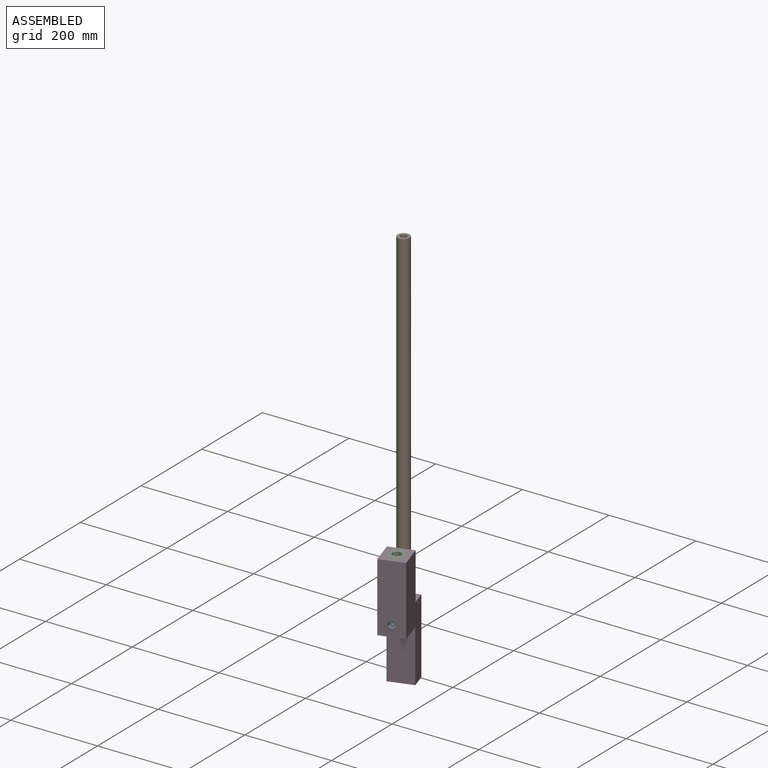
[diagram: assembled view]
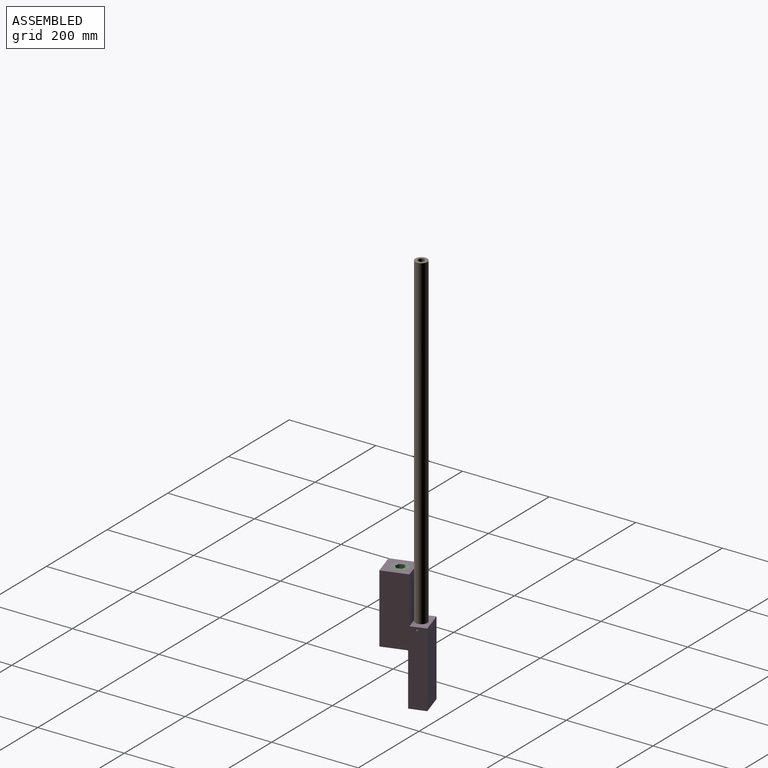
[diagram: assembled view, second angle]
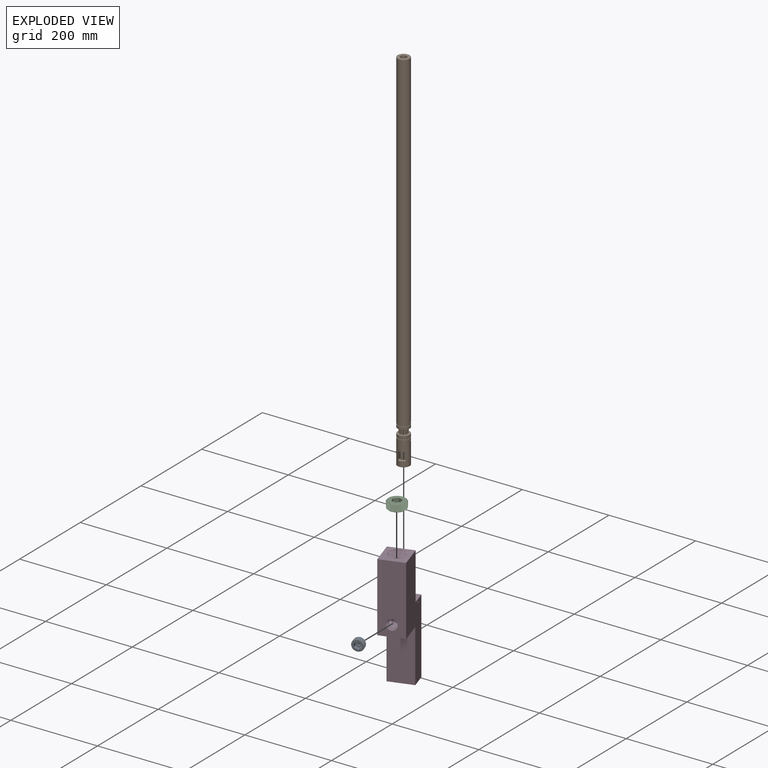
[diagram: exploded view]
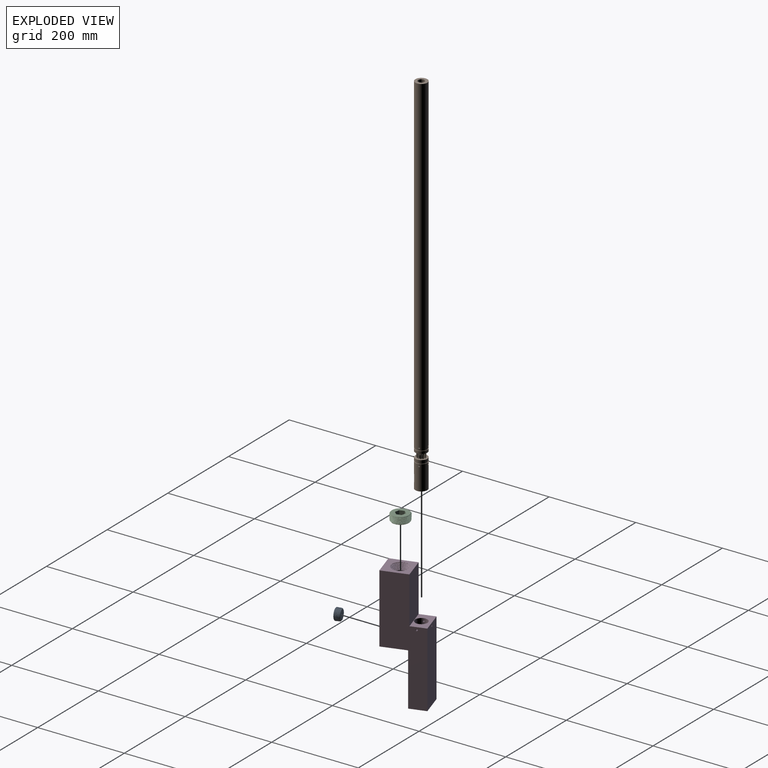
[diagram: exploded view, second angle]
ASSEMBLY  parts=4 mates=3
PART A: 16 faces, bbox 26.9x26.9x14.7 mm
  f0: cone r=1732.05mm half-angle=60deg, axis (0,0,1), area 60.7mm2, adj f4
  f1: cone r=11.89mm half-angle=45deg, axis (0,0,-1), area 86.9mm2, adj f5,f6,f7,f8
  f2: cone r=11.48mm half-angle=45deg, axis (0,0,1), area 84.8mm2, adj f3,f6,f7,f8,f9
  f3: cone r=11.48mm half-angle=45deg, axis (0,0,1), area 3.2mm2, adj f2,f6,f8
  f4: plane 16.48x14.28mm, normal (0,0,1), area 123.9mm2, adj f0,f10,f11,f12,f13,f14,f15
  f5: plane 23.77x23.77mm, normal (0,0,1), area 267.5mm2, adj f1,f10,f11,f12,f13,f14,f15
  f6: bspline ~26.84x26.68mm, area 822.6mm2, adj f1,f2,f3,f7,f8
  f7: bspline ~23.81x23.74mm, area 121.9mm2, adj f1,f2,f6,f8
  f8: bspline ~26.9x26.87mm, area 789.3mm2, adj f1,f2,f3,f6,f7
  f9: plane 22.97x22.97mm, normal (0,0,-1), area 414.3mm2, adj f2
  f10: plane 7.92x7.14mm, normal (0.5,-0.87,0), area 65.3mm2, adj f4,f5,f11,f15
  f11: plane 7.92x7.14mm, normal (-0.5,-0.87,0), area 65.3mm2, adj f4,f5,f10,f12
  f12: plane 8.24x7.92mm, normal (-1,0,0), area 65.3mm2, adj f4,f5,f11,f13
  f13: plane 7.92x7.14mm, normal (-0.5,0.87,0), area 65.3mm2, adj f4,f5,f12,f14
  f14: plane 7.92x7.14mm, normal (0.5,0.87,0), area 65.3mm2, adj f4,f5,f13,f15
  f15: plane 8.24x7.92mm, normal (1,0,0), area 65.3mm2, adj f4,f5,f10,f14
PART B: 156 faces, bbox 27.9x27.9x850 mm
  f0: cylinder r=12.7mm len=25.4mm, axis (0,0,1), area 192.5mm2, adj f121,f124
  f1: cylinder r=13.97mm len=763.41mm, axis (0,0,-1), area 66977.7mm2, adj f74,f76,f78,f121,f143
  f2: plane 16.41x14.63mm, normal (0,0,-1), area 110.3mm2, adj f3,f117,f118,f120
  f3: cylinder r=13.97mm len=57.02mm, axis (0,0,-1), area 4669.3mm2, adj f2,f109,f111,f113,f115,f116,f117,f118
  f4: cylinder r=13.97mm len=27.94mm, axis (0,0,-1), area 528.4mm2, adj f45,f123
  f5: cylinder r=9.65mm len=12.7mm, axis (0,0,1), area 27.5mm2, adj f44,f45,f69,f72,f92,f93,f96,f97
  f6: cylinder r=9.65mm len=12.7mm, axis (0,0,1), area 27.5mm2, adj f44,f45,f70,f73,f96,f97,f98,f99
  f7: cylinder r=9.65mm len=12.7mm, axis (0,0,1), area 27.5mm2, adj f44,f45,f67,f68,f92,f93,f94,f95
  f8: cylinder r=9.65mm len=12.7mm, axis (0,0,1), area 27.5mm2, adj f44,f45,f47,f66,f82,f83,f94,f95
  f9: cylinder r=9.65mm len=12.7mm, axis (0,0,1), area 27.5mm2, adj f44,f45,f61,f64,f84,f85,f88,f89
  f10: cylinder r=9.65mm len=12.7mm, axis (0,0,1), area 27.5mm2, adj f44,f45,f62,f65,f88,f89,f90,f91
  f11: cylinder r=9.65mm len=12.7mm, axis (0,0,1), area 27.5mm2, adj f44,f45,f59,f60,f84,f85,f86,f87
  f12: cylinder r=9.65mm len=12.7mm, axis (0,0,1), area 27.5mm2, adj f44,f45,f58,f71,f86,f87,f98,f99
  f13: cylinder r=9.65mm len=12.7mm, axis (0,0,1), area 27.5mm2, adj f44,f45,f55,f56,f81,f106,f107,f108
  f14: cylinder r=9.65mm len=12.7mm, axis (0,0,1), area 27.5mm2, adj f44,f45,f51,f54,f81,f104,f105,f108
  f15: cylinder r=9.65mm len=12.7mm, axis (0,0,1), area 27.5mm2, adj f44,f45,f52,f63,f90,f91,f102,f103
  f16: cylinder r=9.65mm len=12.7mm, axis (0,0,1), area 27.5mm2, adj f44,f45,f50,f53,f102,f103,f104,f105
  f17: cylinder r=9.65mm len=12.7mm, axis (0,0,1), area 27.5mm2, adj f44,f45,f48,f57,f100,f101,f106,f107
  f18: cylinder r=9.65mm len=12.7mm, axis (0,0,1), area 27.5mm2, adj f44,f45,f46,f49,f82,f83,f100,f101
  f19: cylinder r=7.42mm len=684.71mm, axis (0,0,1), area 2724.6mm2, adj f39,f41,f119,f128,f148,f149
  f20: cylinder r=7.42mm len=684.71mm, axis (0,0,1), area 2619.1mm2, adj f36,f38,f119,f131,f146,f147
  f21: cylinder r=7.42mm len=684.71mm, axis (0,0,1), area 2662mm2, adj f33,f35,f119,f134,f144,f145
  f22: cylinder r=7.42mm len=684.71mm, axis (0,0,1), area 2662mm2, adj f30,f32,f119,f137,f154,f155
  f23: cylinder r=7.42mm len=684.71mm, axis (0,0,1), area 2595.8mm2, adj f27,f29,f119,f140,f152,f153
  f24: cylinder r=7.42mm len=684.71mm, axis (0,0,1), area 2712.2mm2, adj f26,f42,f119,f125,f150,f151
  f25: cylinder r=7.33mm len=759.76mm, axis (0,0,-1), area 2904.8mm2, adj f26,f27,f119,f141,f142,f143,f151,f152
  f26: bspline ~699.35x14.87mm, area 65.7mm2, adj f24,f25,f142,f151
  f27: bspline ~699.35x14.37mm, area 65.7mm2, adj f23,f25,f141,f152
  f28: cylinder r=7.33mm len=759.76mm, axis (0,0,-1), area 2878.4mm2, adj f29,f30,f119,f138,f139,f143,f153,f154
  f29: bspline ~699.35x14.74mm, area 65.7mm2, adj f23,f28,f139,f153
  f30: bspline ~699.35x14.86mm, area 65.7mm2, adj f22,f28,f138,f154
  f31: cylinder r=7.33mm len=759.76mm, axis (0,0,-1), area 2914mm2, adj f32,f33,f119,f135,f136,f143,f144,f155
  f32: bspline ~699.35x14.42mm, area 65.7mm2, adj f22,f31,f136,f155
  f33: bspline ~699.35x14.73mm, area 65.7mm2, adj f21,f31,f135,f144
  f34: cylinder r=7.33mm len=759.76mm, axis (0,0,-1), area 2888.9mm2, adj f35,f36,f119,f132,f133,f143,f145,f146
  f35: bspline ~699.35x14.86mm, area 65.7mm2, adj f21,f34,f133,f145
  f36: bspline ~699.35x14.43mm, area 65.7mm2, adj f20,f34,f132,f146
  f37: cylinder r=7.33mm len=759.76mm, axis (0,0,-1), area 2919.9mm2, adj f38,f39,f119,f129,f130,f143,f147,f148
  f38: bspline ~699.35x14.72mm, area 65.7mm2, adj f20,f37,f130,f147
  f39: bspline ~699.35x14.87mm, area 65.7mm2, adj f19,f37,f129,f148
  f40: cylinder r=7.33mm len=759.76mm, axis (0,0,-1), area 2973.6mm2, adj f41,f42,f119,f126,f127,f143,f149,f150
  f41: bspline ~699.35x14.41mm, area 65.7mm2, adj f19,f40,f127,f149
  f42: bspline ~699.35x14.75mm, area 65.7mm2, adj f24,f40,f126,f150
  f43: cylinder r=13.97mm len=27.94mm, axis (0,0,-1), area 528.4mm2, adj f44,f124
  f44: plane 27.94x27.94mm, normal (0,0,1), area 320.4mm2, adj f5,f6,f7,f8,f9,f10,f11,f12
  f45: plane 27.94x27.94mm, normal (0,0,-1), area 320.4mm2, adj f4,f5,f6,f7,f8,f9,f10,f11
  f46: plane 10.32x1.59mm, normal (0.7,-0.72,0), area 22.9mm2, adj f18,f82,f83,f120
  f47: plane 10.32x1.6mm, normal (-0.7,0.72,0), area 23mm2, adj f8,f82,f83,f120
  f48: plane 10.32x2.08mm, normal (0.94,-0.34,0), area 22.9mm2, adj f17,f100,f101,f120
  f49: plane 10.32x2.1mm, normal (-0.94,0.34,0), area 23mm2, adj f18,f100,f101,f120
  f50: plane 10.32x1.86mm, normal (0.54,0.84,0), area 22.9mm2, adj f16,f104,f105,f120
  f51: plane 10.32x1.88mm, normal (-0.54,-0.84,0), area 23mm2, adj f14,f104,f105,f120
  f52: plane 10.32x2.2mm, normal (0.12,0.99,0), area 22.9mm2, adj f15,f102,f103,f120
  f53: plane 10.32x2.21mm, normal (-0.12,-0.99,0), area 23mm2, adj f16,f102,f103,f120
  f54: plane 10.32x1.89mm, normal (0.85,0.52,0), area 22.9mm2, adj f14,f81,f108,f120
  f55: plane 10.32x1.9mm, normal (-0.85,-0.52,0), area 23mm2, adj f13,f81,f108,f120
  f56: plane 10.32x2.21mm, normal (0.99,0.1,0), area 22.9mm2, adj f13,f106,f107,f120
  f57: plane 10.32x2.22mm, normal (-0.99,-0.1,0), area 23mm2, adj f17,f106,f107,f120
  f58: plane 10.32x2.21mm, normal (-0.99,-0.1,0), area 22.9mm2, adj f12,f86,f87,f120
  f59: plane 10.32x2.22mm, normal (0.99,0.1,0), area 23mm2, adj f11,f86,f87,f120
  f60: plane 10.32x2.08mm, normal (-0.94,0.34,0), area 22.9mm2, adj f11,f84,f85,f120
  f61: plane 10.32x2.1mm, normal (0.94,-0.34,0), area 23mm2, adj f9,f84,f85,f120
  f62: plane 10.32x2.1mm, normal (-0.32,0.95,0), area 22.9mm2, adj f10,f90,f91,f120
  f63: plane 10.32x2.12mm, normal (0.32,-0.95,0), area 23mm2, adj f15,f90,f91,f120
  f64: plane 10.32x1.59mm, normal (-0.7,0.72,0), area 22.9mm2, adj f9,f88,f89,f120
  f65: plane 10.32x1.6mm, normal (0.7,-0.72,0), area 23mm2, adj f10,f88,f89,f120
  f66: plane 10.32x2.1mm, normal (0.32,-0.95,0), area 22.9mm2, adj f8,f94,f95,f120
  f67: plane 10.32x2.12mm, normal (-0.32,0.95,0), area 23mm2, adj f7,f94,f95,f120
  f68: plane 10.32x2.2mm, normal (-0.12,-0.99,0), area 22.9mm2, adj f7,f92,f93,f120
  f69: plane 10.32x2.21mm, normal (0.12,0.99,0), area 23mm2, adj f5,f92,f93,f120
  f70: plane 10.32x1.89mm, normal (-0.85,-0.52,0), area 22.9mm2, adj f6,f98,f99,f120
  f71: plane 10.32x1.9mm, normal (0.85,0.52,0), area 23mm2, adj f12,f98,f99,f120
  f72: plane 10.32x1.86mm, normal (-0.54,-0.84,0), area 22.9mm2, adj f5,f96,f97,f120
  f73: plane 10.32x1.88mm, normal (0.54,0.84,0), area 23mm2, adj f6,f96,f97,f120
  f74: cylinder r=1.98mm len=4.33mm, axis (-0.99,0.15,0), area 33.6mm2, adj f1,f75
  f75: plane 3.97x3.92mm, normal (-0.99,0.15,0), area 12.4mm2, adj f74
  f76: cylinder r=1.98mm len=4.33mm, axis (0.15,0.99,0), area 33.6mm2, adj f1,f77
  f77: plane 3.97x3.92mm, normal (0.15,0.99,0), area 12.4mm2, adj f76
  f78: cylinder r=1.98mm len=4.32mm, axis (0.99,-0.15,0), area 33mm2, adj f1,f79
  f79: plane 3.97x3.92mm, normal (0.99,-0.15,0), area 12.4mm2, adj f78
  f80: cylinder r=12.7mm len=25.4mm, axis (0,0,1), area 192.5mm2, adj f122,f123
  f81: cylinder r=1.19mm len=3.25mm, axis (-0.52,0.85,0), area 8.5mm2, adj f13,f14,f54,f55,f120
  f82: cylinder r=1.19mm len=3.33mm, axis (-0.72,-0.7,0), area 8.5mm2, adj f8,f18,f46,f47,f120
  f83: cylinder r=1.19mm len=3.33mm, axis (0.72,0.7,0), area 8.5mm2, adj f8,f18,f46,f47,f120
  f84: cylinder r=1.19mm len=3.03mm, axis (0.34,0.94,0), area 8.5mm2, adj f9,f11,f60,f61,f120
  f85: cylinder r=1.19mm len=3.03mm, axis (-0.34,-0.94,0), area 8.5mm2, adj f9,f11,f60,f61,f120
  f86: cylinder r=1.19mm len=2.6mm, axis (-0.1,0.99,0), area 8.5mm2, adj f11,f12,f58,f59,f120
  f87: cylinder r=1.19mm len=2.6mm, axis (0.1,-0.99,0), area 8.5mm2, adj f11,f12,f58,f59,f120
  f88: cylinder r=1.19mm len=3.33mm, axis (0.72,0.7,0), area 8.5mm2, adj f9,f10,f64,f65,f120
  f89: cylinder r=1.19mm len=3.33mm, axis (-0.72,-0.7,0), area 8.5mm2, adj f9,f10,f64,f65,f120
  f90: cylinder r=1.19mm len=3mm, axis (0.95,0.32,0), area 8.5mm2, adj f10,f15,f62,f63,f120
  f91: cylinder r=1.19mm len=3mm, axis (-0.95,-0.32,0), area 8.5mm2, adj f10,f15,f62,f63,f120
  f92: cylinder r=1.19mm len=2.65mm, axis (-0.99,0.12,0), area 8.4mm2, adj f5,f7,f68,f69,f120
  f93: cylinder r=1.19mm len=2.65mm, axis (0.99,-0.12,0), area 8.4mm2, adj f5,f7,f68,f69,f120
  f94: cylinder r=1.19mm len=3mm, axis (0.95,0.32,0), area 8.5mm2, adj f7,f8,f66,f67,f120
  f95: cylinder r=1.19mm len=3mm, axis (-0.95,-0.32,0), area 8.5mm2, adj f7,f8,f66,f67,f120
  f96: cylinder r=1.19mm len=3.26mm, axis (-0.84,0.54,0), area 8.5mm2, adj f5,f6,f72,f73,f120
  f97: cylinder r=1.19mm len=3.26mm, axis (0.84,-0.54,0), area 8.5mm2, adj f5,f6,f72,f73,f120
  f98: cylinder r=1.19mm len=3.25mm, axis (-0.52,0.85,0), area 8.5mm2, adj f6,f12,f70,f71,f120
  f99: cylinder r=1.19mm len=3.25mm, axis (0.52,-0.85,0), area 8.5mm2, adj f6,f12,f70,f71,f120
  f100: cylinder r=1.19mm len=3.03mm, axis (-0.34,-0.94,0), area 8.5mm2, adj f17,f18,f48,f49,f120
  f101: cylinder r=1.19mm len=3.03mm, axis (0.34,0.94,0), area 8.5mm2, adj f17,f18,f48,f49,f120
  f102: cylinder r=1.19mm len=2.65mm, axis (0.99,-0.12,0), area 8.5mm2, adj f15,f16,f52,f53,f120
  f103: cylinder r=1.19mm len=2.65mm, axis (-0.99,0.12,0), area 8.5mm2, adj f15,f16,f52,f53,f120
  f104: cylinder r=1.19mm len=3.26mm, axis (0.84,-0.54,0), area 8.5mm2, adj f14,f16,f50,f51,f120
  f105: cylinder r=1.19mm len=3.26mm, axis (-0.84,0.54,0), area 8.5mm2, adj f14,f16,f50,f51,f120
  f106: cylinder r=1.19mm len=2.6mm, axis (0.1,-0.99,0), area 8.5mm2, adj f13,f17,f56,f57,f120
  f107: cylinder r=1.19mm len=2.6mm, axis (-0.1,0.99,0), area 8.5mm2, adj f13,f17,f56,f57,f120
  f108: cylinder r=1.19mm len=3.25mm, axis (-0.52,0.85,0), area 8.5mm2, adj f13,f14,f54,f55,f120
  f109: cylinder r=1.98mm len=4.32mm, axis (0.15,0.99,0), area 33mm2, adj f3,f110
  f110: plane 3.97x3.92mm, normal (0.15,0.99,0), area 12.4mm2, adj f109
  f111: cylinder r=1.98mm len=4.32mm, axis (0.99,-0.15,0), area 33mm2, adj f3,f112
  f112: plane 3.97x3.92mm, normal (0.99,-0.15,0), area 12.4mm2, adj f111
  f113: cylinder r=1.98mm len=4.32mm, axis (-0.99,0.15,0), area 33mm2, adj f3,f114
  f114: plane 3.97x3.92mm, normal (-0.99,0.15,0), area 12.4mm2, adj f113
  f115: plane 27.94x27.94mm, normal (0,0,1), area 438.7mm2, adj f3,f120
  f116: plane 16.41x14.63mm, normal (0,0,1), area 110.3mm2, adj f3,f117,f118,f120
  f117: plane 19.05x11.24mm, normal (-0.99,0.15,0), area 216.6mm2, adj f2,f3,f116,f120
  f118: plane 19.05x11.24mm, normal (0.99,-0.15,0), area 216.6mm2, adj f2,f3,f116,f120
  f119: plane 14.9x14.9mm, normal (0,0,1), area 3.5mm2, adj f19,f20,f21,f22,f23,f24,f25,f28
  f120: cylinder r=7.45mm len=90.24mm, axis (0,0,1), area 3387.3mm2, adj f2,f46,f47,f48,f49,f50,f51,f52
  f121: plane 27.94x27.94mm, normal (0,0,1), area 106.4mm2, adj f0,f1
  f122: plane 27.94x27.94mm, normal (0,0,-1), area 106.4mm2, adj f3,f80
  f123: plane 27.94x27.94mm, normal (0,0,1), area 106.4mm2, adj f4,f80
  f124: plane 27.94x27.94mm, normal (0,0,-1), area 106.4mm2, adj f0,f43
  f125: extruded ~75.06x3.91mm, area 297.3mm2, adj f24,f126,f142,f143
  f126: plane 75.06x0.1mm, normal (-0.97,-0.25,0), area 7.5mm2, adj f40,f42,f125,f143
  f127: plane 75.06x0.07mm, normal (0.71,0.71,0), area 7.5mm2, adj f40,f41,f128,f143
  f128: extruded ~75.06x3.42mm, area 298.7mm2, adj f19,f127,f129,f143
  f129: plane 75.06x0.1mm, normal (-0.25,-0.97,0), area 7.5mm2, adj f37,f39,f128,f143
  f130: plane 75.06x0.1mm, normal (-0.27,0.96,0), area 7.5mm2, adj f37,f38,f131,f143
  f131: extruded ~75.06x3.26mm, area 287.1mm2, adj f20,f130,f132,f143
  f132: plane 75.06x0.07mm, normal (0.71,-0.7,0), area 7.5mm2, adj f34,f36,f131,f143
  f133: plane 75.06x0.1mm, normal (-0.97,0.26,0), area 7.5mm2, adj f34,f35,f134,f143
  f134: extruded ~75.06x3.84mm, area 291.8mm2, adj f21,f133,f135,f143
  f135: plane 75.06x0.1mm, normal (0.97,0.26,0), area 7.5mm2, adj f31,f33,f134,f143
  f136: plane 75.06x0.07mm, normal (-0.71,-0.71,0), area 7.5mm2, adj f31,f32,f137,f143
  f137: extruded ~75.06x3.33mm, area 291.8mm2, adj f22,f136,f138,f143
  f138: plane 75.06x0.1mm, normal (0.26,0.97,0), area 7.5mm2, adj f28,f30,f137,f143
  f139: plane 75.06x0.1mm, normal (0.25,-0.97,0), area 7.5mm2, adj f28,f29,f140,f143
  f140: extruded ~75.06x3.27mm, area 284.6mm2, adj f23,f139,f141,f143
  f141: plane 75.06x0.07mm, normal (-0.69,0.72,0), area 7.5mm2, adj f25,f27,f140,f143
  f142: plane 75.06x0.1mm, normal (0.96,-0.28,0), area 7.5mm2, adj f25,f26,f125,f143
  f143: plane 27.94x27.94mm, normal (0,0,-1), area 442.2mm2, adj f1,f25,f28,f31,f34,f37,f40,f125
  f144: plane 27.99x0.08mm, normal (-0.85,-0.53,0), area 2.8mm2, adj f21,f31,f33,f119
  f145: plane 27.99x0.1mm, normal (1,0.04,0), area 2.8mm2, adj f21,f34,f35,f119
  f146: plane 27.99x0.09mm, normal (-0.89,0.46,0), area 2.8mm2, adj f20,f34,f36,f119
  f147: plane 27.99x0.08mm, normal (0.54,-0.84,0), area 2.8mm2, adj f20,f37,f38,f119
  f148: plane 27.99x0.1mm, normal (-0.05,1,0), area 2.8mm2, adj f19,f37,f39,f119
  f149: plane 27.99x0.09mm, normal (-0.47,-0.88,0), area 2.8mm2, adj f19,f40,f41,f119
  f150: plane 27.99x0.09mm, normal (0.85,0.52,0), area 2.8mm2, adj f24,f40,f42,f119
  f151: plane 27.99x0.1mm, normal (-1,-0.02,0), area 2.8mm2, adj f24,f25,f26,f119
  f152: plane 27.99x0.09mm, normal (0.88,-0.48,0), area 2.8mm2, adj f23,f25,f27,f119
  f153: plane 27.99x0.09mm, normal (-0.53,0.85,0), area 2.8mm2, adj f23,f28,f29,f119
  f154: plane 27.99x0.1mm, normal (0.04,-1,0), area 2.8mm2, adj f22,f28,f30,f119
  f155: plane 27.99x0.09mm, normal (0.47,0.88,0), area 2.8mm2, adj f22,f31,f32,f119
PART C: 16 faces, bbox 42.7x42.7x18.3 mm
  f0: cone r=1732.05mm half-angle=60deg, axis (0,0,1), area 31.5mm2, adj f4
  f1: cone r=19.39mm half-angle=45deg, axis (0,0,-1), area 170.8mm2, adj f5,f6,f7,f8
  f2: cone r=18.89mm half-angle=45deg, axis (0,0,1), area 167.9mm2, adj f3,f6,f7,f8,f9
  f3: cone r=18.89mm half-angle=45deg, axis (0,0,1), area 6.1mm2, adj f2,f6,f8
  f4: plane 22x19.05mm, normal (0,0,1), area 287mm2, adj f0,f10,f11,f12,f13,f14,f15
  f5: plane 38.78x38.78mm, normal (0,0,1), area 867mm2, adj f1,f10,f11,f12,f13,f14,f15
  f6: bspline ~42.7x42.69mm, area 1653.7mm2, adj f1,f2,f3,f7,f8
  f7: bspline ~39.34x39.27mm, area 247.7mm2, adj f1,f2,f6,f8
  f8: bspline ~42.62x42.56mm, area 1586.6mm2, adj f1,f2,f3,f6,f7
  f9: plane 37.78x37.78mm, normal (0,0,-1), area 1120.9mm2, adj f2
  f10: plane 11.1x9.53mm, normal (0.5,-0.87,0), area 122.1mm2, adj f4,f5,f11,f15
  f11: plane 11.1x9.53mm, normal (-0.5,-0.87,0), area 122.1mm2, adj f4,f5,f10,f12
  f12: plane 11.1x11mm, normal (-1,0,0), area 122.1mm2, adj f4,f5,f11,f13
  f13: plane 11.1x9.53mm, normal (-0.5,0.87,0), area 122.1mm2, adj f4,f5,f12,f14
  f14: plane 11.1x9.53mm, normal (0.5,0.87,0), area 122.1mm2, adj f4,f5,f13,f15
  f15: plane 11.1x11mm, normal (1,0,0), area 122.1mm2, adj f4,f5,f10,f14
PART D: 53 faces, bbox 58.1x96.6x281.4 mm
  f0: cylinder r=18.85mm len=129.54mm, axis (0,0,-1), area 14406.8mm2, adj f6,f7,f8,f23,f30
  f1: plane 280.43x95.47mm, normal (1,0,0), area 15895.1mm2, adj f3,f4,f5,f9,f10,f12,f13,f16
  f2: plane 280.43x95.46mm, normal (-1,0,0), area 15825.2mm2, adj f3,f4,f5,f9,f10,f12,f13,f16
  f3: plane 172.48x57.36mm, normal (0,1,0), area 9829.9mm2, adj f1,f2,f10,f16,f43,f50,f51,f52
  f4: plane 158.76x57.16mm, normal (0,-1,0), area 8610mm2, adj f1,f2,f5,f13,f24,f25,f26,f27
  f5: plane 59.69x57.15mm, normal (0,0,1), area 2199mm2, adj f1,f2,f4,f9,f17,f20,f21
  f6: plane 37.7x37.7mm, normal (0,0,1), area 1116.5mm2, adj f0
  f7: cylinder r=11.51mm len=23.02mm, axis (0,-1,0), area 190.5mm2, adj f0,f28
  f8: cylinder r=11.51mm len=23.02mm, axis (0,-1,0), area 824.1mm2, adj f0,f11
  f9: plane 107.95x57.15mm, normal (0,1,0), area 6169.3mm2, adj f1,f2,f5,f10
  f10: plane 57.15x35.56mm, normal (0,0,1), area 1419.1mm2, adj f1,f2,f3,f9,f11
  f11: cylinder r=13.97mm len=97.21mm, axis (0,0,1), area 8022.6mm2, adj f8,f10,f14,f41,f42,f43,f44,f45
  f12: plane 121.46x57.15mm, normal (0,-1,0), area 6941.6mm2, adj f1,f2,f13,f16
  f13: plane 57.15x57.15mm, normal (0,0,-1), area 3266.1mm2, adj f1,f2,f4,f12
  f14: plane 27.94x27.94mm, normal (0,0,1), area 438.7mm2, adj f11,f15
  f15: cylinder r=7.45mm len=75.06mm, axis (0,0,1), area 3513.4mm2, adj f14,f16
  f16: plane 57.15x38.1mm, normal (0,0,-1), area 2003mm2, adj f1,f2,f3,f12,f15
  f17: cone r=19.39mm half-angle=45deg, axis (0,0,-1), area 126.9mm2, adj f5,f20,f21,f22
  f18: cone r=18.89mm half-angle=45deg, axis (0,0,1), area 167.9mm2, adj f19,f20,f21,f22,f23
  f19: cone r=18.89mm half-angle=45deg, axis (0,0,1), area 6.1mm2, adj f18,f20,f22
  f20: bspline ~42.47x42.39mm, area 1653.7mm2, adj f5,f17,f18,f19,f21,f22
  f21: bspline ~39.34x39.27mm, area 247.7mm2, adj f5,f17,f18,f20,f22
  f22: bspline ~42.62x42.56mm, area 1586.6mm2, adj f17,f18,f19,f20,f21
  f23: plane 37.78x37.78mm, normal (0,0,1), area 4.4mm2, adj f0,f18
  f24: cone r=11.89mm half-angle=45deg, axis (0,1,0), area 60.5mm2, adj f4,f25,f27
  f25: bspline ~26.71x26.62mm, area 822.5mm2, adj f4,f24,f26,f27,f28,f29
  f26: bspline ~24.02x23.91mm, area 121.4mm2, adj f4,f25,f27,f28
  f27: bspline ~26.9x26.87mm, area 789.2mm2, adj f4,f24,f25,f26,f28,f29
  f28: cone r=11.48mm half-angle=45deg, axis (0,-1,0), area 82.2mm2, adj f7,f25,f26,f27,f29
  f29: cone r=11.48mm half-angle=45deg, axis (0,-1,0), area 3.2mm2, adj f25,f27,f28
  f30: cylinder r=4.37mm len=8.73mm, axis (-1,0,0), area 60.7mm2, adj f0,f32
  f31: cylinder r=4.72mm len=9.43mm, axis (-1,0,0), area 10.7mm2, adj f2,f34
  f32: plane 9.07x9.07mm, normal (-1,0,0), area 4.7mm2, adj f30,f33
  f33: cone r=4.53mm half-angle=45deg, axis (-1,0,0), area 13.6mm2, adj f32,f35,f36,f37,f38
  f34: cone r=4.72mm half-angle=45deg, axis (1,0,0), area 13.6mm2, adj f31,f35,f36,f37,f38,f40
  f35: cone r=5.14mm half-angle=1.5deg, axis (-1,0,0), area 29.2mm2, adj f33,f34,f36,f37,f39
  f36: bspline ~11.26x11.25mm, area 192.8mm2, adj f33,f34,f35,f38
  f37: bspline ~10.54x10.53mm, area 151.5mm2, adj f33,f34,f35,f38,f39,f40
  f38: bspline ~9.36x9.34mm, area 26mm2, adj f33,f34,f36,f37
  f39: bspline ~2.93x1.91mm, area 0mm2, adj f35,f37
  f40: plane 0x0mm, normal (-0.87,-0.09,0.49), area 0mm2, adj f34,f37
  f41: cylinder r=1.98mm len=14.74mm, axis (1,0,0), area 41.4mm2, adj f2,f11,f45,f46
  f42: cylinder r=1.98mm len=14.74mm, axis (1,0,0), area 42.6mm2, adj f1,f11,f48,f49
  f43: cylinder r=1.98mm len=7.25mm, axis (0,1,0), area 22.9mm2, adj f3,f11,f51,f52
  f44: cylinder r=2.41mm len=14.74mm, axis (1,0,0), area 26.1mm2, adj f2,f11,f45,f46
  f45: bspline ~15.38x4.83mm, area 126.7mm2, adj f2,f11,f41,f44
  f46: bspline ~15.38x4.83mm, area 126.6mm2, adj f2,f11,f41,f44
  f47: cylinder r=2.41mm len=14.77mm, axis (-1,0,0), area 33mm2, adj f1,f11,f48,f49
  f48: bspline ~15.38x4.83mm, area 126.7mm2, adj f1,f11,f42,f47
  f49: bspline ~15.27x4.82mm, area 126.5mm2, adj f1,f11,f42,f47
  f50: cylinder r=2.41mm len=7.28mm, axis (0,-1,0), area 18.1mm2, adj f3,f11,f51,f52
  f51: bspline ~7.84x4.83mm, area 62.6mm2, adj f3,f11,f43,f50
  f52: bspline ~7.94x4.83mm, area 62.1mm2, adj f3,f11,f43,f50
PLACE A rot(axis=(0.98,0.15,0.15),91.3deg) t=(-56.65,-320.83,-277.68)mm
PLACE B rot(axis=(0.08,-1,0),180deg) t=(-124.69,-287.55,-424.54)mm
PLACE C rot(axis=(0,0,1),17.3deg) t=(-66.45,-289.3,-144.07)mm
PLACE D rot(axis=(0,0,1),17.3deg) t=(-78.75,-249.76,-303.08)mm
MATE fastened A.f0 <-> D.f7  axis (-0.3,0.95,0) through (-60.64,-307.97,-277.68)mm
MATE fastened C.f0 <-> D.f0  axis (0,0,-1) through (-66.45,-289.3,-160.84)mm
MATE fastened B.f40 <-> D.f11  axis (0,0,-1) through (-78.75,-249.76,-277.68)mm
